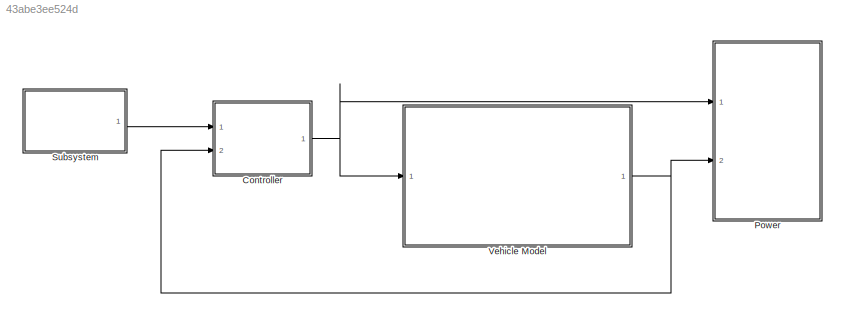
MODEL slx_43abe3ee524d
KIND model
CONFIG AbsTol = auto
CONFIG EnableMultiTasking = off
CONFIG FixedStep = auto
CONFIG MaxStep = 0.01
CONFIG MinStep = auto
CONFIG RelTol = 1e-3
CONFIG SampleTimeConstraint = Unconstrained
CONFIG Solver = VariableStepAuto
CONFIG SolverName = VariableStepAuto
CONFIG StartTime = 0
CONFIG StopTime = 1923
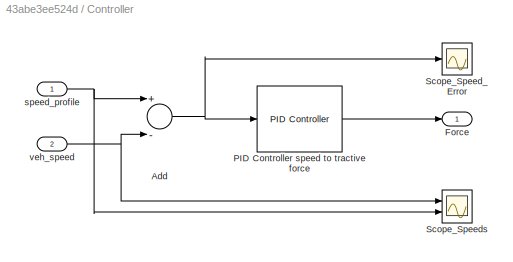
BLOCK [SubSystem] Controller
  Ports = [2, 1]
  RequestExecContextInheritance = off
BLOCK [Sum] Controller/Add
  InputSameDT = off
  Inputs = +-
  OutDataTypeStr = Inherit: Inherit via internal rule
  Ports = [2, 1]
  SaturateOnIntegerOverflow = off
BLOCK [Outport] Controller/Force
  IconDisplay = Port number
BLOCK [Reference] Controller/PID Controller speed to tractive force  REF=simulink/Continuous/PID Controller
  Ports = [1, 1]
  SourceBlock = simulink/Continuous/PID Controller
  SourceProductBaseCode = SL
  SourceProductName = Simulink
  SourceType = PID 1dof
BLOCK [Scope] Controller/Scope_Speed_Error 
  Floating = off
  NumInputPorts = 1
  Ports = [1]
  ScopeSpecificationString = Simulink.scopes.TimeScopeBlockCfg('CurrentConfiguration', extmgr.ConfigurationSet(extmgr.Configuration('Core','General UI',true,'FigureColor',[1 1 1]),extmgr.Configuration('Core','Source UI',true),extmgr.Configuration('Sources','WiredSimulink',true,'DataLoggingVariableName','ScopeData3'),extmgr.Configuration('Visuals','Time Domain',true,'SerializedDisplays',{struct('MinYLimReal','-10.29959','MaxYL...<+1637ch>
BLOCK [Scope] Controller/Scope_Speeds
  Floating = off
  NumInputPorts = 2
  Ports = [2]
  ScopeSpecificationString = Simulink.scopes.TimeScopeBlockCfg('CurrentConfiguration', extmgr.ConfigurationSet(extmgr.Configuration('Core','General UI',true,'FigureColor',[1 1 1]),extmgr.Configuration('Core','Source UI',true),extmgr.Configuration('Sources','WiredSimulink',true,'DataLoggingVariableName','ScopeData1'),extmgr.Configuration('Visuals','Time Domain',true,'SerializedDisplays',{struct('MinYLimReal','-7.34883','MaxYLi...<+1697ch>
BLOCK [Inport] Controller/speed_profile
  IconDisplay = Port number
BLOCK [Inport] Controller/veh_speed
  IconDisplay = Port number
  Port = 2
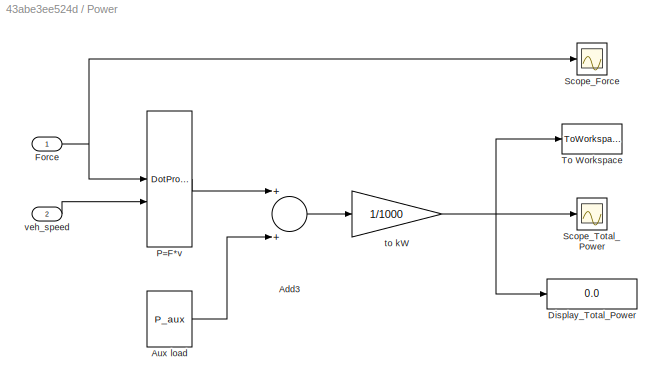
BLOCK [SubSystem] Power
  Ports = [2]
  RequestExecContextInheritance = off
BLOCK [Sum] Power/Add3
  InputSameDT = off
  OutDataTypeStr = Inherit: Inherit via internal rule
  Ports = [2, 1]
  SaturateOnIntegerOverflow = off
BLOCK [Constant] Power/Aux load
  Value = P_aux
BLOCK [Display] Power/Display_Total_Power
  Decimation = 1
  Ports = [1]
BLOCK [Inport] Power/Force
  IconDisplay = Port number
BLOCK [DotProduct] Power/P=F*v
  OutDataTypeStr = Inherit: Inherit via internal rule
BLOCK [Scope] Power/Scope_Force
  Floating = off
  NumInputPorts = 1
  Ports = [1]
  ScopeSpecificationString = Simulink.scopes.TimeScopeBlockCfg('CurrentConfiguration', extmgr.ConfigurationSet(extmgr.Configuration('Core','General UI',true,'FigureColor',[1 1 1]),extmgr.Configuration('Core','Source UI',true),extmgr.Configuration('Sources','WiredSimulink',true,'DataLoggingVariableName','ScopeData2'),extmgr.Configuration('Visuals','Time Domain',true,'SerializedDisplays',{struct('MinYLimReal','-34089.44329','Ma...<+1617ch>
BLOCK [Scope] Power/Scope_Total_Power
  Floating = off
  NumInputPorts = 1
  Ports = [1]
  ScopeSpecificationString = Simulink.scopes.TimeScopeBlockCfg('CurrentConfiguration', extmgr.ConfigurationSet(extmgr.Configuration('Core','General UI',true,'FigureColor',[1 1 1]),extmgr.Configuration('Core','Source UI',true),extmgr.Configuration('Sources','WiredSimulink',true),extmgr.Configuration('Visuals','Time Domain',true,'SerializedDisplays',{struct('MinYLimReal','-270.40911','MaxYLimReal','396.2169','YLabelReal','','Mi...<+1565ch>
BLOCK [ToWorkspace] Power/To Workspace
  FixptAsFi = on
  MaxDataPoints = inf
  Ports = [1]
  SampleTime = -1
  Save2DSignal = 3-D array (concatenate along third dimension)
  SaveFormat = Timeseries
  VariableName = Total_Power
BLOCK [Gain] Power/to kW
  Gain = 1/1000
  OutDataTypeStr = Inherit: Inherit via internal rule
  ParamDataTypeStr = Inherit: Inherit via internal rule
  SaturateOnIntegerOverflow = off
BLOCK [Inport] Power/veh_speed
  IconDisplay = Port number
  Port = 2
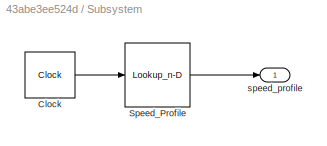
BLOCK [SubSystem] Subsystem
  Ports = [0, 1]
  RequestExecContextInheritance = off
BLOCK [Clock] Subsystem/Clock
BLOCK [Lookup_n-D] Subsystem/Speed_Profile
  BreakpointsForDimension1 = [0:1923]
  BreakpointsSpecification = Even spacing
  InternalRulePriority = Speed
  NumberOfTableDimensions = 1
  Ports = [1, 1]
  RndMeth = Simplest
  Table = speed_m_s
BLOCK [Outport] Subsystem/speed_profile
  IconDisplay = Port number
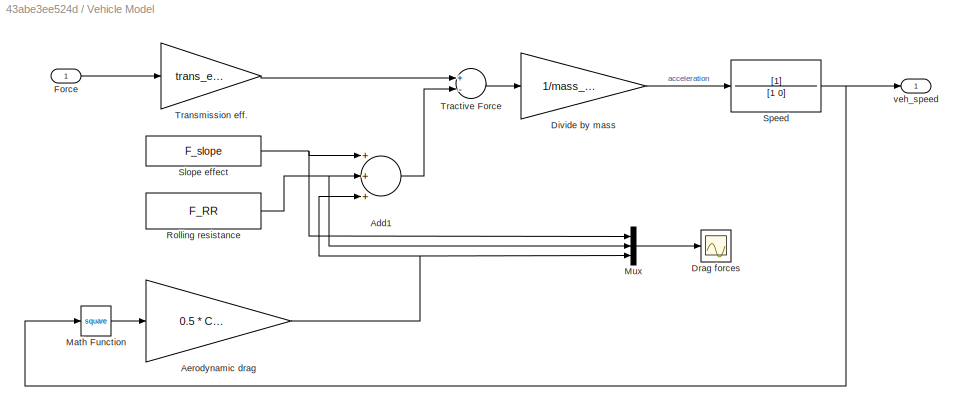
BLOCK [SubSystem] Vehicle Model
  Ports = [1, 1]
  RequestExecContextInheritance = off
BLOCK [Sum] Vehicle Model/Add1
  InputSameDT = off
  Inputs = +++
  OutDataTypeStr = Inherit: Inherit via internal rule
  Ports = [3, 1]
  SaturateOnIntegerOverflow = off
BLOCK [Gain] Vehicle Model/Aerodynamic drag
  Gain = 0.5 * C_D * RHO * A_CS
  OutDataTypeStr = Inherit: Inherit via internal rule
  ParamDataTypeStr = Inherit: Inherit via internal rule
  SaturateOnIntegerOverflow = off
BLOCK [Gain] Vehicle Model/Divide by mass 
  Gain = 1/mass_total
  OutDataTypeStr = Inherit: Inherit via internal rule
  ParamDataTypeStr = Inherit: Inherit via internal rule
  SaturateOnIntegerOverflow = off
BLOCK [Scope] Vehicle Model/Drag forces
  Floating = off
  NumInputPorts = 1
  Ports = [1]
  ScopeSpecificationString = Simulink.scopes.TimeScopeBlockCfg('CurrentConfiguration', extmgr.ConfigurationSet(extmgr.Configuration('Core','General UI',true),extmgr.Configuration('Core','Source UI',true),extmgr.Configuration('Sources','WiredSimulink',true,'DataLoggingVariableName','ScopeData2'),extmgr.Configuration('Visuals','Time Domain',true,'SerializedDisplays',{struct('MinYLimReal','-8058.43002','MaxYLimReal','72525.87022...<+1493ch>
BLOCK [Inport] Vehicle Model/Force
  IconDisplay = Port number
BLOCK [Math] Vehicle Model/Math Function
  Operator = square
  Ports = [1, 1]
BLOCK [Mux] Vehicle Model/Mux
  DisplayOption = bar
  Inputs = 3
  Ports = [3, 1]
BLOCK [Constant] Vehicle Model/Rolling resistance
  Value = F_RR
BLOCK [Constant] Vehicle Model/Slope effect
  Value = F_slope
BLOCK [TransferFcn] Vehicle Model/Speed
  Denominator = [1 0]
BLOCK [Sum] Vehicle Model/Tractive Force
  InputSameDT = off
  Inputs = +-
  OutDataTypeStr = Inherit: Inherit via internal rule
  Ports = [2, 1]
  SaturateOnIntegerOverflow = off
BLOCK [Gain] Vehicle Model/Transmission eff.
  Gain = trans_eff
  OutDataTypeStr = Inherit: Inherit via internal rule
  ParamDataTypeStr = Inherit: Inherit via internal rule
  SaturateOnIntegerOverflow = off
BLOCK [Outport] Vehicle Model/veh_speed
  IconDisplay = Port number
NET Controller/Add:1 -> Controller/PID Controller speed to tractive force:1, Controller/Scope_Speed_Error :1
LINE Controller/PID Controller speed to tractive force:1 -> Controller/Force:1
NET Controller/speed_profile:1 -> Controller/Add:1, Controller/Scope_Speeds:2
NET Controller/veh_speed:1 -> Controller/Add:2, Controller/Scope_Speeds:1
NET Controller:1 -> Power:1, Vehicle Model:1
LINE Power/Add3:1 -> Power/to kW:1
LINE Power/Aux load:1 -> Power/Add3:2
NET Power/Force:1 -> Power/P=F*v:1, Power/Scope_Force:1
LINE Power/P=F*v:1 -> Power/Add3:1
NET Power/to kW:1 -> Power/Display_Total_Power:1, Power/Scope_Total_Power:1, Power/To Workspace:1
LINE Power/veh_speed:1 -> Power/P=F*v:2
LINE Subsystem/Clock:1 -> Subsystem/Speed_Profile:1
LINE Subsystem/Speed_Profile:1 -> Subsystem/speed_profile:1
LINE Subsystem:1 -> Controller:1
LINE Vehicle Model/Add1:1 -> Vehicle Model/Tractive Force:2
NET Vehicle Model/Aerodynamic drag:1 -> Vehicle Model/Add1:3, Vehicle Model/Mux:3
LINE Vehicle Model/Divide by mass :1 -> Vehicle Model/Speed:1
LINE Vehicle Model/Force:1 -> Vehicle Model/Transmission eff.:1
LINE Vehicle Model/Math Function:1 -> Vehicle Model/Aerodynamic drag:1
LINE Vehicle Model/Mux:1 -> Vehicle Model/Drag forces:1
NET Vehicle Model/Rolling resistance:1 -> Vehicle Model/Add1:2, Vehicle Model/Mux:2
NET Vehicle Model/Slope effect:1 -> Vehicle Model/Add1:1, Vehicle Model/Mux:1
NET Vehicle Model/Speed:1 -> Vehicle Model/Math Function:1, Vehicle Model/veh_speed:1
LINE Vehicle Model/Tractive Force:1 -> Vehicle Model/Divide by mass :1
LINE Vehicle Model/Transmission eff.:1 -> Vehicle Model/Tractive Force:1
NET Vehicle Model:1 -> Controller:2, Power:2
note: NET lines group one-source signal fan-out (src -> all destinations, sorted); 1:1 wires keep LINE
